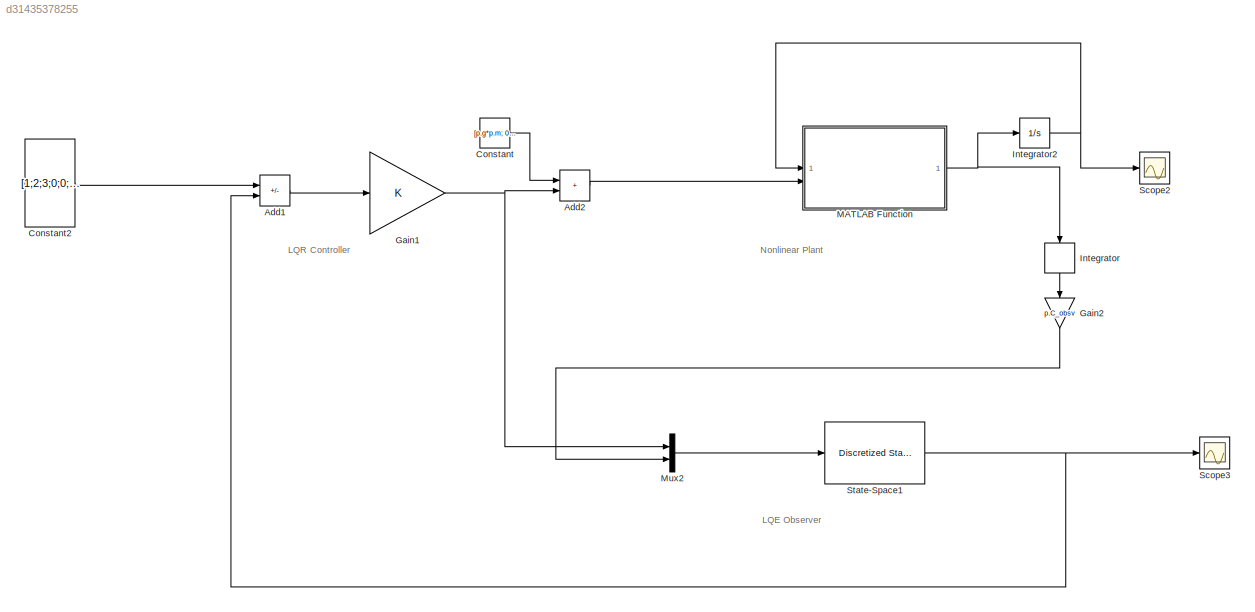
MODEL slx_d31435378255
KIND model
CONFIG AbsTol = auto
CONFIG EnableMultiTasking = off
CONFIG FixedStep = auto
CONFIG MaxStep = auto
CONFIG MinStep = auto
CONFIG RelTol = 1e-3
CONFIG SampleTimeConstraint = Unconstrained
CONFIG SolverName = VariableStepAuto
CONFIG StartTime = 0.0
CONFIG StopTime = 10
BLOCK [Sum] Add1
  IconShape = rectangular
  Inputs = +-
BLOCK [Sum] Add2
  IconShape = rectangular
BLOCK [Constant] Constant
  Value = [p.g*p.m; 0 ; 0; 0]
BLOCK [Constant] Constant2
  Value = [1;2;3;0;0;0;0;0;0;0;0;0]
BLOCK [Gain] Gain1
  Gain = K
  Multiplication = Matrix(K*u)
BLOCK [Gain] Gain2
  Gain = p.C_obsv
  Multiplication = Matrix(K*u)
  NameLocation = left
BLOCK [DiscreteIntegrator] Integrator
  ICPrevOutput = DiscIntNeverNeededParam
  ICPrevScaledInput = DiscIntNeverNeededParam
  NameLocation = left
  SampleTime = 0.0375
BLOCK [Integrator] Integrator2
  InitialCondition = [0;0;0;0;0;0;0;0;0;0;0;0]
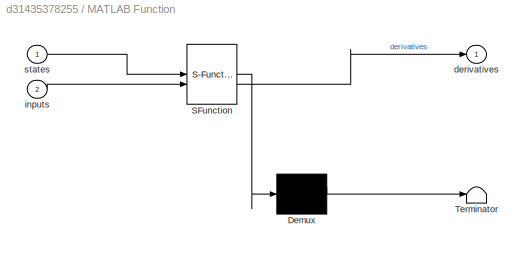
BLOCK [SubSystem] MATLAB Function
  ErrorFcn = Stateflow.Translate.translate
  PermitHierarchicalResolution = ExplicitOnly
  SFBlockType = MATLAB Function
  TreatAsAtomicUnit = on
BLOCK [Demux] MATLAB Function/ Demux 
  Outputs = 1
BLOCK [S-Function] MATLAB Function/ SFunction 
  EnableBusSupport = off
  FunctionName = sf_sfun
  Parameters = p
  PortCounts = [2 2]
  SFcnIsStateOwnerBlock = off
  SFunctionDeploymentMode = off
  Tag = Stateflow S-Function 3
BLOCK [Terminator] MATLAB Function/ Terminator 
BLOCK [Outport] MATLAB Function/derivatives
BLOCK [Inport] MATLAB Function/inputs
  Port = 2
BLOCK [Inport] MATLAB Function/states
BLOCK [Mux] Mux2
  DisplayOption = bar
  Inputs = 2
BLOCK [Scope] Scope2
  ActiveDisplayYMaximum = 14.827310955757874
  ActiveDisplayYMinimum = -4.0288161805447356
  DataLoggingVariableName = ScopeData2
  Floating = off
  GraphicalSettings = {"Style":{"BackgroundColor":[0.12941176470588237,0.12941176470588237,0.12941176470588237],"AxesColor":[0.07058823529411765,0.07058823529411765,0.07058823529411765],"LabelsColor":[0.8509803921568627,0.8509803921568627,0.8509803921568627],"PreserveColors":false,"Visible":[true,true,true,true,true,true,true,true,true,true,true,true],"LineStyle":["-","-","-","-","-","-","-","-","-","-","-","-"],"LineW...<+3551ch>
  MultipleDisplayCache = [{"MaxYLimMag":11.714719016294206,"MaxYLimReal":14.827310955757874,"MinYLimMag":0,"MinYLimReal":-4.0288161805447356,"PlotAsMagnitudePhase":false,"ShowGrid":true,"ShowLegend":true,"Title":"%<SignalLabel>","YLabel":""}]
  NumInputPorts = 1
  ScopeFrameLocation = window
  ShowLegend = on
  WasSavedAsWebScope = on
  WindowPosition = [0.000000,36.000000,1536.000000,793.000000,]
BLOCK [Scope] Scope3
  ActiveDisplayYMaximum = 8.2692080529825738
  ActiveDisplayYMinimum = -15.857945347276067
  DataLoggingVariableName = ScopeData3
  Floating = off
  GraphicalSettings = {"Style":{"BackgroundColor":[0.12941176470588237,0.12941176470588237,0.12941176470588237],"AxesColor":[0.07058823529411765,0.07058823529411765,0.07058823529411765],"LabelsColor":[0.8509803921568627,0.8509803921568627,0.8509803921568627],"PreserveColors":false,"Visible":[true,true,true,true,true,true,true,true,true,true,true,true],"LineStyle":["-","-","-","-","-","-","-","-","-","-","-","-"],"LineW...<+3575ch>
  MultipleDisplayCache = [{"MaxYLimMag":11.714300250145726,"MaxYLimReal":8.2692080529825738,"MinYLimMag":0,"MinYLimReal":-15.857945347276067,"PlotAsMagnitudePhase":false,"ShowGrid":true,"ShowLegend":true,"Title":"%<SignalLabel>","YLabel":""}]
  NumInputPorts = 1
  ScopeFrameLocation = window
  ShowLegend = on
  WasSavedAsWebScope = on
  WindowPosition = [0.000000,36.000000,1536.000000,793.000000,]
BLOCK [Reference] State-Space1  REF=discretizing/Discretized  (lib defined in mdl_5048aa1cd587)
State-Space
  SourceBlock = discretizing/Discretized\nState-Space
  SourceType = DiscretizedStateSpace
ANNOTATION (root): LQE Observer
ANNOTATION (root): LQR Controller
ANNOTATION (root): Nonlinear Plant
LINE Add1:1 -> Gain1:1
LINE Add2:1 -> MATLAB Function:2
LINE Constant2:1 -> Add1:1
LINE Constant:1 -> Add2:1
NET Gain1:1 -> Add2:2, Mux2:1
LINE Gain2:1 -> Mux2:2
NET Integrator2:1 -> MATLAB Function:1, Scope2:1
LINE Integrator:1 -> Gain2:1
NET MATLAB Function:1 -> Integrator2:1, Integrator:1
LINE Mux2:1 -> State-Space1:1
NET State-Space1:1 -> Add1:2, Scope3:1
note: NET lines group one-source signal fan-out (src -> all destinations, sorted); 1:1 wires keep LINE
CHART MATLAB Function states=1 transitions=1
  STATE_LABEL 'eML_blk_kernel()'
  STATE_LABEL 'SCRIPT:\nfunction derivatives = fcn(states, inputs, p)\n\n % I is the inertia matrix\n    I = [p.Ixx 0 0;\n         0 p.Iyy 0;\n         0 0 p.Izz];\n\n    xi= states(1:3); % x, y, z\n    xid = states(4:6); %x_prime, y_prime, z_prime\n    eta = states(7:9); % roll, pitch, yaw\n    etad = states(10:12); % roll_prime, pitch_prime, yaw_prime\n\n    % Cosines of each\n    c_roll = cos(eta(1));\n    c_pitch = cos(eta...<+1233ch>'
CHART  states=0 transitions=0
